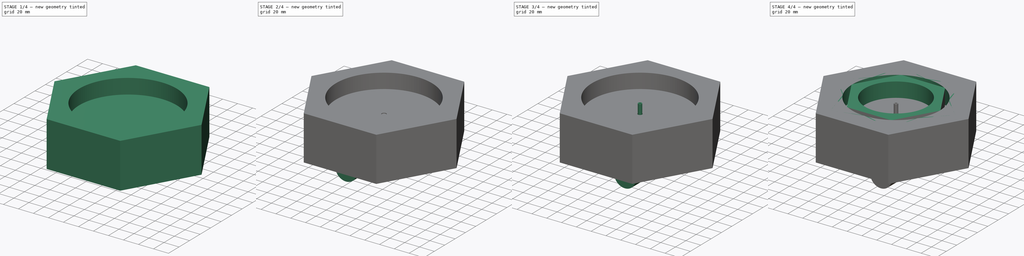
[diagram: build sequence overview — one tinted view per stage of 4, left to right]
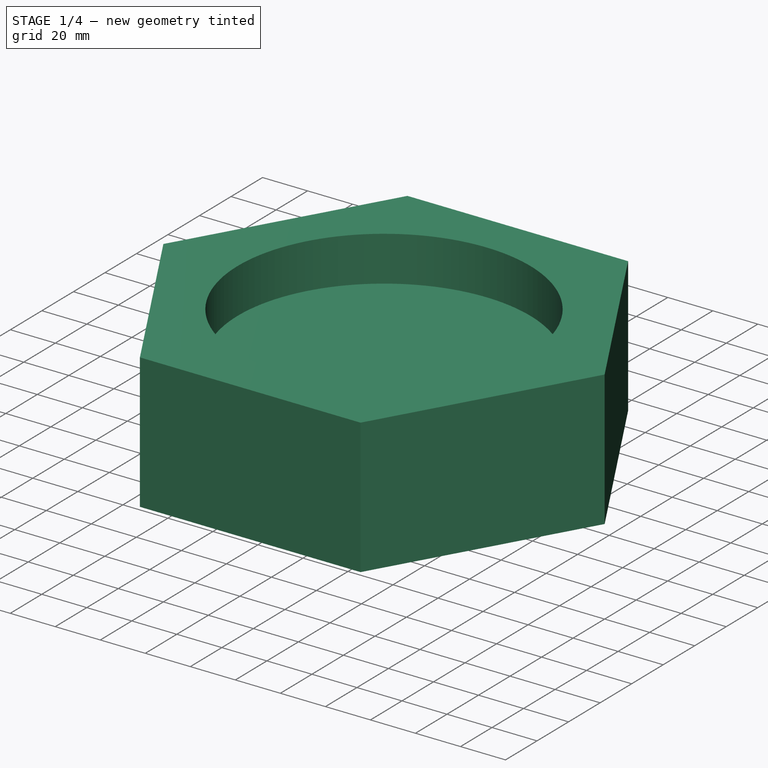
[diagram: stage 1 of 4 — iso view after this stage's code; geometry added in this stage tinted green]
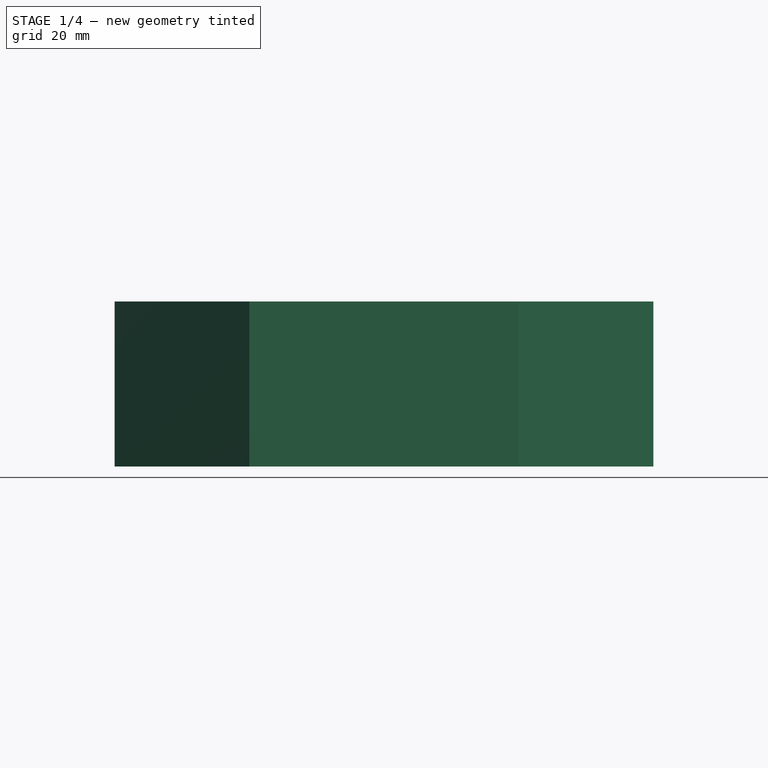
[diagram: stage 1 of 4 — front view after this stage's code; geometry added in this stage tinted green]
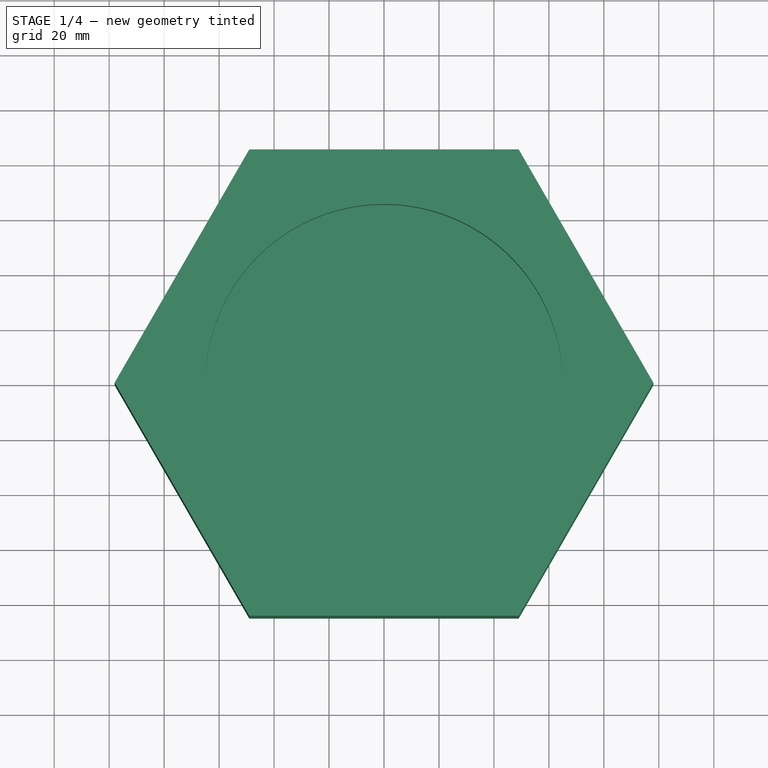
[diagram: stage 1 of 4 — top view after this stage's code; geometry added in this stage tinted green]
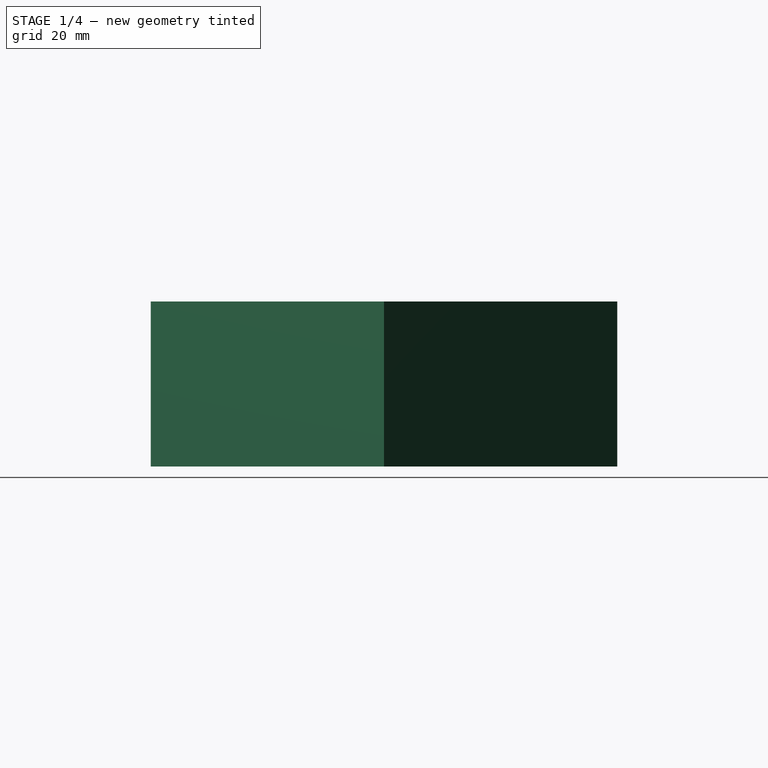
[diagram: stage 1 of 4 — right view after this stage's code; geometry added in this stage tinted green]
FCSTD DOCUMENT  (FreeCAD 0.17R13387 (Git))
Label: sketch_size_papertest
License: All rights reserved
LicenseURL: http://en.wikipedia.org/wiki/All_rights_reserved
objects: Sketcher::SketchObject×19, PartDesign::Body×9, PartDesign::Pad×8, TechDraw::DrawSVGTemplate×8, Part::Part2DObjectPython×8, TechDraw::DrawViewPart×8, TechDraw::DrawPage×8, App::Part×8, Part::FeaturePython×6, App::DocumentObjectGroup×6, PartDesign::Pocket×5, PartDesign::FeatureBase×1, PartDesign::ShapeBinder×1, PartDesign::Plane×1
note: 71 computed .brp shape members not serialized (recipe doc carries the construction recipe); baked Part::Feature solids carry a one-line shape summary decoded from their .brp

FEATURE [PartDesign::Body] Body  label="base_hexagon_120mm_Body"
  Group = -> [Sketch,Pad,Sketch001,Pocket]
  Origin = -> Origin001
  Tip = -> Pocket
FEATURE [Sketcher::SketchObject] Sketch002  label="hexagon_180mm_base_Sketch"
  MapMode = 5
  Support = -> [XY_Plane002]
  expr: Constraints[19] = 180 + 4 + 4 + 4 + 4
  sketch-geometry (7):
    g0: LineSegment StartX=49 StartY=84.8705 StartZ=0 EndX=-49 EndY=84.8705 EndZ=0
    g1: LineSegment StartX=-49 StartY=84.8705 StartZ=0 EndX=-98 EndY=2e-12 EndZ=0
    g2: LineSegment StartX=-98 StartY=2e-12 StartZ=0 EndX=-49 EndY=-84.8705 EndZ=0
    g3: LineSegment StartX=-49 StartY=-84.8705 StartZ=0 EndX=49 EndY=-84.8705 EndZ=0
    g4: LineSegment StartX=49 StartY=-84.8705 StartZ=0 EndX=98 EndY=2e-12 EndZ=0
    g5: LineSegment StartX=98 StartY=2e-12 StartZ=0 EndX=49 EndY=84.8705 EndZ=0
    g6: Circle [constr] CenterX=0 CenterY=0 CenterZ=0 NormalX=0 NormalY=0 NormalZ=1 AngleXU=0 Radius=98
  constraints (20):
    c: Coincident(g0,g1)
    c: Coincident(g1,g2)
    c: Coincident(g2,g3)
    c: Coincident(g3,g4)
    c: Coincident(g4,g5)
    c: Coincident(g5,g0)
    c: Equal(g0, g1-g5) x5
    c: PointOnObject(g0,g6)
    c: PointOnObject(g1,g6)
    c: PointOnObject(g2,g6)
    c: PointOnObject(g3,g6)
    c: PointOnObject(g4,g6)
    c: PointOnObject(g5,g6)
    c: Coincident(g6,g-1)
    c: Horizontal(g0)
    c: DistanceX(g1,g4) = 196
    c: DistanceX(g3,g3) = 98
    c: DistanceY(g3,g0) = 169.741
    c: DistanceX(g3,g4) = 49
    c: Radius(g6) = 98
FEATURE [PartDesign::Pad] Pad001
  Length = 60
  Length2 = 100
  Profile = -> Sketch002
  Type = 0
FEATURE [Sketcher::SketchObject] Sketch003
  ExternalGeometry = -> [Pad001]
  MapMode = 5
  Placement = pos=(0,0,60) rot=(0,0,1;0rad)
  Support = -> [Pad001]
  sketch-geometry (2):
    g0: Circle CenterX=0 CenterY=0 CenterZ=0 NormalX=0 NormalY=0 NormalZ=1 AngleXU=0 Radius=65
    g1: LineSegment [constr] StartX=0 StartY=84.8705 StartZ=0 EndX=0 EndY=65 EndZ=0
  constraints (6):
    c: Coincident(g0,g-1)
    c: Vertical(g1)
    c: Symmetric(g-3,g-3,g1)
    c: PointOnObject(g1,g0)
    c: DistanceY(g1,g1) = 19.8705
    c: Radius(g0) = 65
FEATURE [PartDesign::Pocket] Pocket001
  BaseFeature = -> Pad001
  Length = 20
  Length2 = 100
  Offset = -4
  Profile = -> Sketch003
  Type = 0
FEATURE [App::Part] Part004  label="battery_2s1p_26650_Part"
  Group = -> [Body004,Clone]
  License = CC BY 3.0
  LicenseURL = http://creativecommons.org/licenses/by/3.0/
  Origin = -> Origin012
  Placement = pos=(0,0,15) rot=(0,0,1;0rad)
FEATURE [Sketcher::SketchObject] Sketch014
  ExternalGeometry = -> [Pocket001]
  MapMode = 5
  Placement = pos=(0,0,0) rot=(1,0,0;3.14159rad)
  Support = -> [Pocket001]
  expr: Constraints[19] = 4 + 4
  sketch-geometry (7):
    g0: LineSegment StartX=44.3812 StartY=76.8705 StartZ=0 EndX=-44.3812 EndY=76.8705 EndZ=0
    g1: LineSegment StartX=-44.3812 StartY=76.8705 StartZ=0 EndX=-88.7624 EndY=0 EndZ=0
    g2: LineSegment StartX=-88.7624 StartY=0 StartZ=0 EndX=-44.3812 EndY=-76.8705 EndZ=0
    g3: LineSegment StartX=-44.3812 StartY=-76.8705 StartZ=0 EndX=44.3812 EndY=-76.8705 EndZ=0
    g4: LineSegment StartX=44.3812 StartY=-76.8705 StartZ=0 EndX=88.7624 EndY=0 EndZ=0
    g5: LineSegment StartX=88.7624 StartY=0 StartZ=0 EndX=44.3812 EndY=76.8705 EndZ=0
    g6: Circle [constr] CenterX=0 CenterY=0 CenterZ=0 NormalX=0 NormalY=0 NormalZ=1 AngleXU=0 Radius=88.7624
  constraints (16):
    c: Coincident(g0,g1)
    c: Coincident(g1,g2)
    c: Coincident(g2,g3)
    c: Coincident(g3,g4)
    c: Coincident(g4,g5)
    c: Coincident(g5,g0)
    c: Equal(g0, g1-g5) x5
    c: PointOnObject(g0,g6)
    c: PointOnObject(g1,g6)
    c: PointOnObject(g2,g6)
    c: PointOnObject(g3,g6)
    c: PointOnObject(g4,g6)
    c: PointOnObject(g5,g6)
    c: Coincident(g6,g-1)
    c: Horizontal(g0)
    c: DistanceY(g0,g-3) = 8
FEATURE [PartDesign::Pocket] Pocket003
  BaseFeature = -> Pocket001
  Length = 5
  Length2 = 100
  Offset = -1
  Profile = -> Sketch014
  Type = 2
FEATURE [PartDesign::Body] Body001  label="base_hexagon_180mm_Body"
  Group = -> [Sketch002,Pad001,Sketch003,Pocket001,Sketch014,Pocket003,Sketch015,Pocket004]
  Origin = -> Origin002
  Tip = -> Pocket004
FEATURE [TechDraw::DrawViewPart] View001  label="View_140mm"
  CoarseView = false
  Direction = (0,0,1)
  Focus = 100
  HardHidden = false
  IsoCount = 0
  IsoHidden = false
  IsoVisible = false
  LockPosition = false
  Perspective = false
  Rotation = 0
  ScaleType = 0
  SeamHidden = false
  SeamVisible = false
  SmoothHidden = false
  SmoothVisible = false
  Source = -> [Body001]
  X = 141.52
  Y = 111.429
FEATURE [TechDraw::DrawPage] Page  label="size_test_Page"
  KeepUpdated = true
  ProjectionType = 0
  Template = -> Template
  Views = -> [View001]
FEATURE [App::Part] Part  label="size_test"
  Group = -> [Body002,View001,Template,Page,Body003,Body]
  License = CC BY 3.0
  LicenseURL = http://creativecommons.org/licenses/by/3.0/
  Origin = -> Origin
FEATURE [App::DocumentObjectGroup] Group005  label="old_stuff"
  Group = -> [Group002,Page003,Page001,Group,Part,XY_Plane005,Group001,Page002]
FEATURE [App::Part] Part005  label="hexagon_180mm_3d_Part"
  Group = -> [Body001]
  License = CC BY 3.0
  LicenseURL = http://creativecommons.org/licenses/by/3.0/
  Origin = -> Origin013
FEATURE [Sketcher::SketchObject] Sketch016
  MapMode = 5
  Support = -> [XY_Plane018]
  expr: Constraints[32] = 3.2000000000000002 / 2
  sketch-geometry (16):
    g0: Circle CenterX=0 CenterY=0 CenterZ=0 NormalX=0 NormalY=0 NormalZ=1 AngleXU=0 Radius=10
    g1: LineSegment StartX=90 StartY=0 StartZ=0 EndX=45 EndY=77.9423 EndZ=0
    g2: LineSegment StartX=45 StartY=77.9423 StartZ=0 EndX=-45 EndY=77.9423 EndZ=0
    g3: LineSegment StartX=-45 StartY=77.9423 StartZ=0 EndX=-90 EndY=0 EndZ=0
    g4: LineSegment StartX=-90 StartY=0 StartZ=0 EndX=-45 EndY=-77.9423 EndZ=0
    g5: LineSegment StartX=-45 StartY=-77.9423 StartZ=0 EndX=45 EndY=-77.9423 EndZ=0
    g6: LineSegment StartX=45 StartY=-77.9423 StartZ=0 EndX=90 EndY=0 EndZ=0
    g7: Circle [constr] CenterX=0 CenterY=0 CenterZ=0 NormalX=0 NormalY=0 NormalZ=1 AngleXU=0 Radius=90
    g8: Circle CenterX=-21 CenterY=21 CenterZ=0 NormalX=0 NormalY=0 NormalZ=1 AngleXU=0 Radius=1.6
    g9: LineSegment [constr] StartX=-21 StartY=21 StartZ=0 EndX=21 EndY=21 EndZ=0
    g10: LineSegment [constr] StartX=21 StartY=21 StartZ=0 EndX=21 EndY=-21 EndZ=0
    g11: LineSegment [constr] StartX=21 StartY=-21 StartZ=0 EndX=-21 EndY=-21 EndZ=0
    g12: LineSegment [constr] StartX=-21 StartY=-21 StartZ=0 EndX=-21 EndY=21 EndZ=0
    g13: Circle CenterX=21 CenterY=21 CenterZ=0 NormalX=0 NormalY=0 NormalZ=1 AngleXU=0 Radius=1.6
    g14: Circle CenterX=21 CenterY=-21 CenterZ=0 NormalX=0 NormalY=0 NormalZ=1 AngleXU=0 Radius=1.6
    g15: Circle CenterX=-21 CenterY=-21 CenterZ=0 NormalX=0 NormalY=0 NormalZ=1 AngleXU=0 Radius=1.6
  constraints (37):
    c: Coincident(g0,g-1)
    c: Coincident(g1,g2)
    c: Coincident(g2,g3)
    c: Coincident(g3,g4)
    c: Coincident(g4,g5)
    c: Coincident(g5,g6)
    c: Coincident(g6,g1)
    c: Equal(g1, g2-g6) x5
    c: PointOnObject(g1,g7)
    c: PointOnObject(g2,g7)
    c: PointOnObject(g3,g7)
    c: PointOnObject(g4,g7)
    c: PointOnObject(g5,g7)
    c: PointOnObject(g6,g7)
    c: Coincident(g7,g-1)
    c: Horizontal(g2)
    c: DistanceX(g3,g1) = 180
    c: Radius(g0) = 10
    c: Coincident(g9,g10)
    c: Coincident(g10,g11)
    c: Coincident(g11,g12)
    c: Coincident(g12,g9)
    c: Horizontal(g9)
    c: Horizontal(g11)
    c: Vertical(g10)
    c: Vertical(g12)
    c: Symmetric(g9,g11,g-1)
    c: Coincident(g8,g9)
    c: Radius(g8) = 1.6
    c: Equal(g9,g10)
    c: Coincident(g13,g9)
    c: Coincident(g14,g10)
    c: Coincident(g15,g11)
    c: Equal(g15,g14)
    c: Equal(g14,g13)
    c: Equal(g13,g8)
    c: DistanceY(g10,g10) = 42
FEATURE [PartDesign::Pad] Pad007
  Length = 4
  Length2 = 100
  Profile = -> Sketch016
  Type = 0
FEATURE [PartDesign::Body] Body007  label="test_motor_mount_Body"
  Group = -> [Sketch016,Pad007]
  Origin = -> Origin015
  Tip = -> Pad007
FEATURE [TechDraw::DrawSVGTemplate] Template006
  Height = 210
  Orientation = 1
  Width = 297
FEATURE [TechDraw::DrawViewPart] View006
  CoarseView = false
  Direction = (0,0,1)
  Focus = 100
  HardHidden = false
  IsoCount = 0
  IsoHidden = false
  IsoVisible = false
  LockPosition = false
  Perspective = false
  Rotation = 0
  ScaleType = 0
  SeamHidden = false
  SeamVisible = false
  SmoothHidden = false
  SmoothVisible = false
  Source = -> [Body007]
  X = 102.888
  Y = 120.612
FEATURE [TechDraw::DrawPage] Page006  label="test_motor_mount_A4_CAM_Page"
  KeepUpdated = true
  ProjectionType = 0
  Template = -> Template006
  Views = -> [View006]
FEATURE [App::Part] Part006  label="test_motor_mount_Part"
  Group = -> [Body007,Template006,View006,Page006]
  License = CC BY 3.0
  LicenseURL = http://creativecommons.org/licenses/by/3.0/
  Origin = -> Origin014
FEATURE [PartDesign::Body] Body008  label="windrose_Body"
  Origin = -> Origin017
FEATURE [PartDesign::ShapeBinder] CopyPocket004
FEATURE [PartDesign::Plane] DatumPlane
  AttachmentOffset = pos=(0,0,1) rot=(0,0,1;0rad)
  MapMode = 5
  Placement = pos=(0,0,41) rot=(0,0,1;0rad)
  Support = -> [CopyPocket004]
FEATURE [Sketcher::SketchObject] Sketch017  label="windrose_top"
  MapMode = 5
  Placement = pos=(0,0,41) rot=(0,0,1;0rad)
  Support = -> [DatumPlane]
  sketch-geometry (6):
    g0: LineSegment StartX=0 StartY=0 StartZ=0 EndX=-16.1658 EndY=28 EndZ=0
    g1: LineSegment StartX=-16.1658 StartY=28 StartZ=0 EndX=0 EndY=65 EndZ=0
    g2: LineSegment StartX=0 StartY=65 StartZ=0 EndX=16.1658 EndY=28 EndZ=0
    g3: LineSegment StartX=16.1658 StartY=28 StartZ=0 EndX=0 EndY=0 EndZ=0
    g4: LineSegment StartX=0 StartY=65 StartZ=0 EndX=0 EndY=0 EndZ=0
    g5: LineSegment [constr] StartX=-16.1658 StartY=28 StartZ=0 EndX=16.1658 EndY=28 EndZ=0
  constraints (15):
    c: Coincident(g-1,g0)
    c: Coincident(g0,g1)
    c: Coincident(g1,g2)
    c: Coincident(g2,g3)
    c: Coincident(g3,g0)
    c: Coincident(g4,g1)
    c: Coincident(g4,g-1)
    c: Vertical(g4)
    c: DistanceY(g4,g4) = 65
    c: Angle(g3,g4) = 0.523599
    c: Angle(g4,g0) = 0.523599
    c: DistanceY(g-1,g2) = 28
    c: Coincident(g5,g0)
    c: Coincident(g5,g2)
    c: Horizontal(g5)
FEATURE [Sketcher::SketchObject] Sketch018  label="windrose_bottom"
  AttachmentOffset = pos=(0,0,0) rot=(0,0,1;0.785398rad)
  MapMode = 5
  Placement = pos=(0,0,41) rot=(0,0,1;0.785398rad)
  Support = -> [DatumPlane]
  sketch-geometry (6):
    g0: LineSegment StartX=0 StartY=0 StartZ=0 EndX=-10.3553 EndY=25 EndZ=0
    g1: LineSegment StartX=-10.3553 StartY=25 StartZ=0 EndX=0 EndY=65 EndZ=0
    g2: LineSegment StartX=0 StartY=65 StartZ=0 EndX=10.3553 EndY=25 EndZ=0
    g3: LineSegment StartX=10.3553 StartY=25 StartZ=0 EndX=0 EndY=0 EndZ=0
    g4: LineSegment StartX=0 StartY=65 StartZ=0 EndX=0 EndY=0 EndZ=0
    g5: LineSegment [constr] StartX=-10.3553 StartY=25 StartZ=0 EndX=10.3553 EndY=25 EndZ=0
  constraints (15):
    c: Coincident(g-1,g0)
    c: Coincident(g0,g1)
    c: Coincident(g1,g2)
    c: Coincident(g2,g3)
    c: Coincident(g3,g0)
    c: Coincident(g4,g1)
    c: Coincident(g4,g-1)
    c: Vertical(g4)
    c: DistanceY(g4,g4) = 65
    c: Angle(g3,g4) = 0.392699
    c: Angle(g4,g0) = 0.392699
    c: DistanceY(g-1,g2) = 25
    c: Coincident(g5,g0)
    c: Coincident(g5,g2)
    c: Horizontal(g5)
FEATURE [Part::FeaturePython] Array004  # Draft array (typed FeaturePython)
  Angle = 360
  ArrayType = 1
  Axis = (0,0,1)
  Base = -> Sketch017
  Center = (0,0,0)
  Fuse = false
  IntervalAxis = (0,0,0)
  IntervalX = (1,0,0)
  IntervalY = (0,1,0)
  IntervalZ = (0,0,0)
  NumberPolar = 4
  NumberX = 2
  NumberY = 2
  NumberZ = 1
FEATURE [Part::FeaturePython] Array005  # Draft array (typed FeaturePython)
  Angle = 360
  ArrayType = 1
  Axis = (0,0,1)
  Base = -> Sketch018
  Center = (0,0,0)
  Fuse = false
  IntervalAxis = (0,0,0)
  IntervalX = (1,0,0)
  IntervalY = (0,1,0)
  IntervalZ = (0,0,0)
  NumberPolar = 4
  NumberX = 2
  NumberY = 2
  NumberZ = 1
FEATURE [TechDraw::DrawSVGTemplate] Template007
  Height = 210
  Orientation = 1
  Width = 297
FEATURE [TechDraw::DrawViewPart] View007
  CoarseView = false
  Direction = (0,0,1)
  Focus = 100
  HardHidden = false
  IsoCount = 0
  IsoHidden = false
  IsoVisible = false
  LockPosition = false
  Perspective = false
  Rotation = 0
  ScaleType = 0
  SeamHidden = false
  SeamVisible = false
  SmoothHidden = false
  SmoothVisible = false
  Source = -> [Array004,Array005]
  X = 148.5
  Y = 105
FEATURE [TechDraw::DrawPage] Page007  label="windrose_A4_CAM_Page"
  KeepUpdated = true
  ProjectionType = 0
  Template = -> Template007
  Views = -> [View007]
FEATURE [App::Part] Part007  label="windrose_Part"
  Group = -> [Body008,CopyPocket004,Array005,Sketch017,Sketch018,DatumPlane,Array004,Template007,View007,Page007]
  License = CC BY 3.0
  LicenseURL = http://creativecommons.org/licenses/by/3.0/
  Origin = -> Origin016
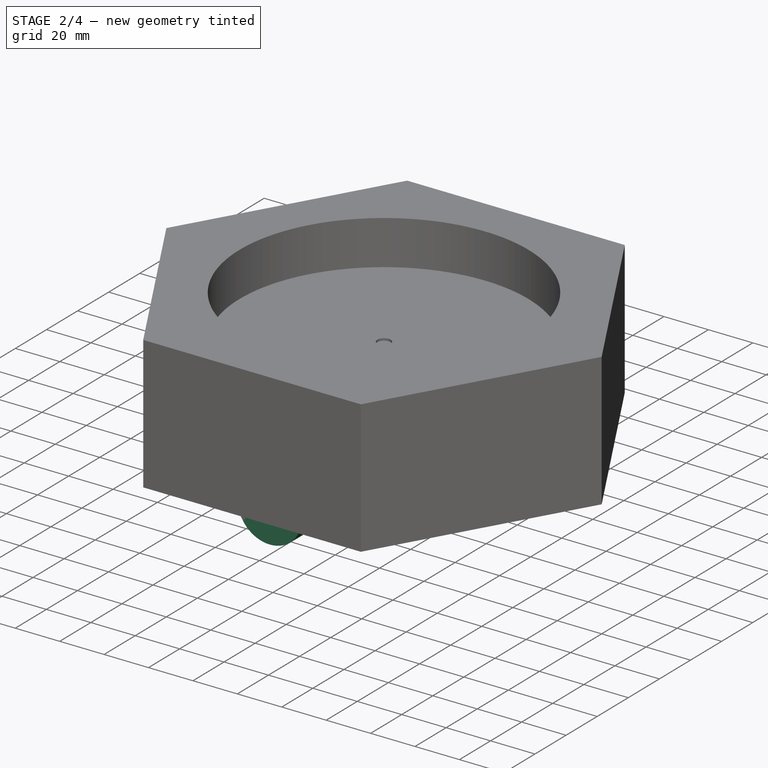
[diagram: stage 2 of 4 — iso view after this stage's code; geometry added in this stage tinted green]
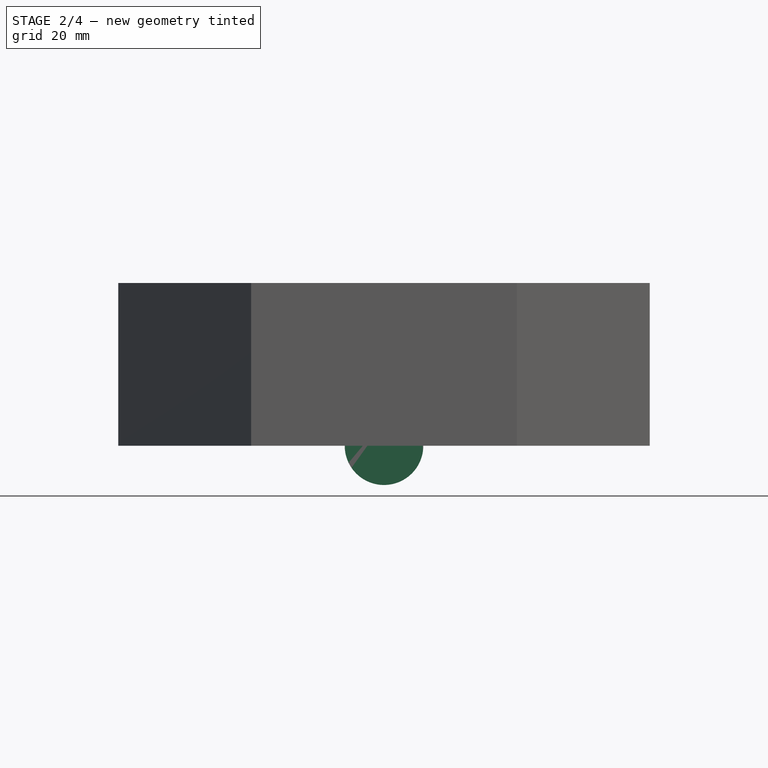
[diagram: stage 2 of 4 — front view after this stage's code; geometry added in this stage tinted green]
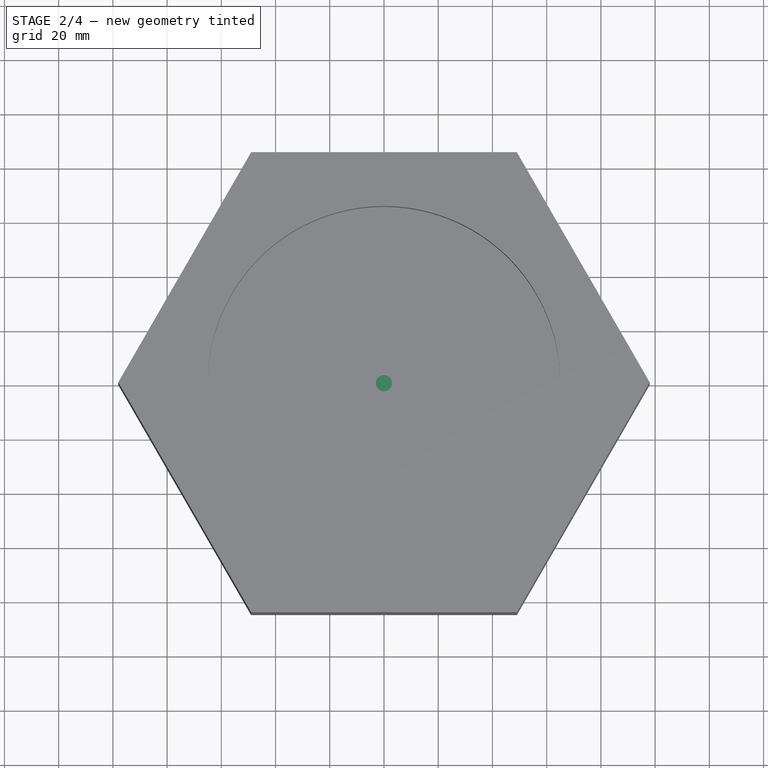
[diagram: stage 2 of 4 — top view after this stage's code; geometry added in this stage tinted green]
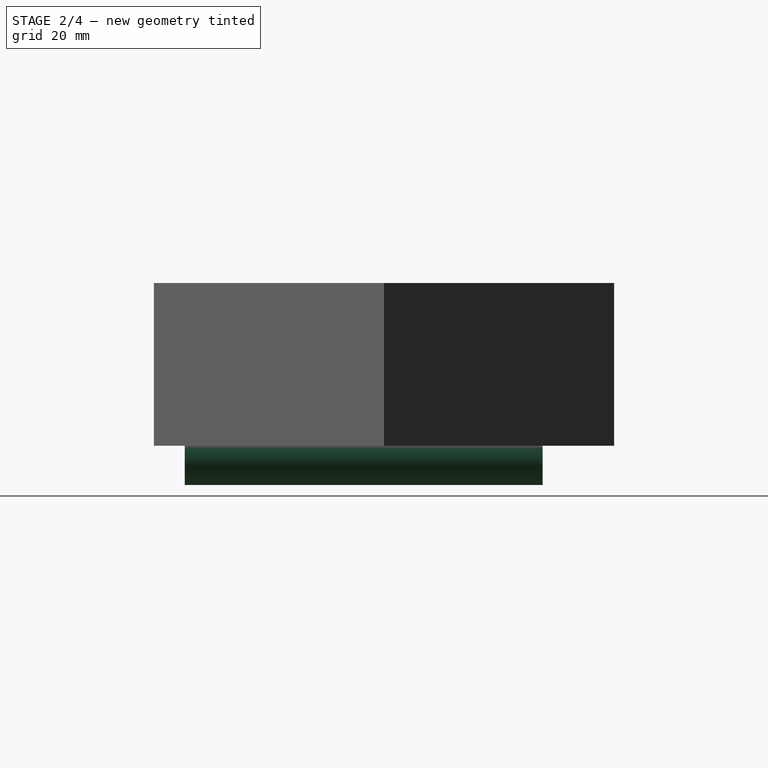
[diagram: stage 2 of 4 — right view after this stage's code; geometry added in this stage tinted green]
FEATURE [PartDesign::Body] Body002  label="base_hexagon_160mm_Body"
  Group = -> [Sketch004,Pad002,Sketch005,Pocket002]
  Origin = -> Origin003
  Tip = -> Pocket002
FEATURE [TechDraw::DrawSVGTemplate] Template
  Height = 210
  Orientation = 1
  Width = 297
FEATURE [Sketcher::SketchObject] Sketch006  label="paper_hexagon_140mm_Sketch"
  MapMode = 5
  Support = -> [XY_Plane004]
  sketch-geometry (13):
    g0: LineSegment StartX=35 StartY=60.6218 StartZ=0 EndX=-35 EndY=60.6218 EndZ=0
    g1: LineSegment StartX=-35 StartY=60.6218 StartZ=0 EndX=-70 EndY=0 EndZ=0
    g2: LineSegment StartX=-70 StartY=0 StartZ=0 EndX=-35 EndY=-60.6218 EndZ=0
    g3: LineSegment StartX=-35 StartY=-60.6218 StartZ=0 EndX=35 EndY=-60.6218 EndZ=0
    g4: LineSegment StartX=35 StartY=-60.6218 StartZ=0 EndX=70 EndY=0 EndZ=0
    g5: LineSegment StartX=70 StartY=0 StartZ=0 EndX=35 EndY=60.6218 EndZ=0
    g6: Circle [constr] CenterX=0 CenterY=0 CenterZ=0 NormalX=0 NormalY=0 NormalZ=1 AngleXU=0 Radius=70
    g7: LineSegment [constr] StartX=0 StartY=70 StartZ=0 EndX=0 EndY=60.6218 EndZ=0
    g8: LineSegment StartX=-35 StartY=60.6218 StartZ=0 EndX=-35 EndY=120.622 EndZ=0
    g9: LineSegment StartX=-35 StartY=120.622 StartZ=0 EndX=35 EndY=120.622 EndZ=0
    g10: LineSegment StartX=35 StartY=120.622 StartZ=0 EndX=35 EndY=60.6218 EndZ=0
    g11: LineSegment StartX=-35 StartY=90.6218 StartZ=0 EndX=35 EndY=90.6218 EndZ=0
    g12: LineSegment StartX=-35 StartY=110.622 StartZ=0 EndX=35 EndY=110.622 EndZ=0
  constraints (40):
    c: Coincident(g0,g1)
    c: Coincident(g1,g2)
    c: Coincident(g2,g3)
    c: Coincident(g3,g4)
    c: Coincident(g4,g5)
    c: Coincident(g5,g0)
    c: Equal(g0, g1-g5) x5
    c: PointOnObject(g0,g6)
    c: PointOnObject(g1,g6)
    c: PointOnObject(g2,g6)
    c: PointOnObject(g3,g6)
    c: PointOnObject(g4,g6)
    c: PointOnObject(g5,g6)
    c: Coincident(g6,g-1)
    c: Horizontal(g0)
    c: DistanceX(g1,g4) = 140
    c: DistanceX(g3,g3) = 70
    c: DistanceY(g3,g0) = 121.244
    c: DistanceX(g3,g4) = 35
    c: Radius(g6) = 70
    c: Vertical(g7)
    c: Perpendicular(g7,g6) = 4.71239
    c: PointOnObject(g7,g0)
    c: DistanceY(g7,g7) = 9.37822
    c: Coincident(g8,g9)
    c: Coincident(g9,g10)
    c: Perpendicular(g9,g8)
    c: Perpendicular(g9,g10)
    c: Coincident(g0,g8)
    c: Coincident(g0,g10)
    c: Parallel(g9,g0)
    c: DistanceY(g8,g8) = 60
    c: Horizontal(g11)
    c: PointOnObject(g11,g8)
    c: PointOnObject(g11,g10)
    c: DistanceY(g11,g8) = 30
    c: Horizontal(g12)
    c: DistanceY(g0,g12) = 50
    c: PointOnObject(g12,g10)
    c: PointOnObject(g12,g8)
FEATURE [PartDesign::Body] Body003  label="paper_test_hexagon_140mm_Body"
  Group = -> [Sketch006]
  Origin = -> Origin004
FEATURE [TechDraw::DrawSVGTemplate] Template001
  Height = 210
  Orientation = 1
  Width = 297
FEATURE [Part::FeaturePython] Array  # Draft array (typed FeaturePython)
  Angle = 360
  ArrayType = 1
  Axis = (0,0,1)
  Base = -> Sketch006
  Center = (0,0,0)
  Fuse = false
  IntervalAxis = (0,0,0)
  IntervalX = (1,0,0)
  IntervalY = (0,1,0)
  IntervalZ = (0,0,0)
  NumberPolar = 6
  NumberX = 2
  NumberY = 2
  NumberZ = 1
FEATURE [Part::Part2DObjectPython] Circle  # Draft 2D object (typed FeaturePython)
  FirstAngle = 0
  LastAngle = 0
  MakeFace = false
  Radius = 50
FEATURE [App::DocumentObjectGroup] Group  label="hexagon_140mm"
  Group = -> [Circle,Array]
FEATURE [TechDraw::DrawViewPart] View002
  CoarseView = false
  Direction = (0,0,1)
  Focus = 100
  HardHidden = false
  IsoCount = 0
  IsoHidden = false
  IsoVisible = false
  LockPosition = false
  Perspective = false
  Rotation = 0
  ScaleType = 0
  SeamHidden = false
  SeamVisible = false
  SmoothHidden = false
  SmoothVisible = false
  Source = -> [Group]
  X = 148.835
  Y = 104.665
FEATURE [TechDraw::DrawPage] Page001  label="paper_test_hexagon_140mm_Page"
  KeepUpdated = true
  ProjectionType = 0
  Template = -> Template001
  Views = -> [View002]
FEATURE [Part::Part2DObjectPython] Rectangle  label="AkkuCell_26650_bottom"  # Draft 2D object (typed FeaturePython)
  ChamferSize = 0
  Columns = 1
  FilletRadius = 0
  Height = 65
  Length = 28
  MakeFace = false
  Placement = pos=(33,-64,0) rot=(0,0,1;1.5708rad)
  Rows = 1
FEATURE [Part::Part2DObjectPython] Rectangle001  label="AkkuCell_26650_top"  # Draft 2D object (typed FeaturePython)
  ChamferSize = 0
  Columns = 1
  FilletRadius = 0
  Height = 65
  Length = 28
  MakeFace = false
  Placement = pos=(33,36,0) rot=(0,0,1;1.5708rad)
  Rows = 1
FEATURE [Part::Part2DObjectPython] Rectangle002  label="AkkuCell_26650_right"  # Draft 2D object (typed FeaturePython)
  ChamferSize = 0
  Columns = 1
  FilletRadius = 0
  Height = 65
  Length = 28
  MakeFace = false
  Placement = pos=(26,-32,0) rot=(0,0,1;0rad)
  Rows = 1
FEATURE [Sketcher::SketchObject] Sketch007  label="paper_hexagon_160mm_Sketch"
  MapMode = 5
  Support = -> [XY_Plane005]
  sketch-geometry (15):
    g0: LineSegment StartX=40 StartY=69.282 StartZ=0 EndX=-40 EndY=69.282 EndZ=0
    g1: LineSegment StartX=-40 StartY=69.282 StartZ=0 EndX=-80 EndY=0 EndZ=0
    g2: LineSegment StartX=-80 StartY=0 StartZ=0 EndX=-40 EndY=-69.282 EndZ=0
    g3: LineSegment StartX=-40 StartY=-69.282 StartZ=0 EndX=40 EndY=-69.282 EndZ=0
    g4: LineSegment StartX=40 StartY=-69.282 StartZ=0 EndX=80 EndY=0 EndZ=0
    g5: LineSegment StartX=80 StartY=0 StartZ=0 EndX=40 EndY=69.282 EndZ=0
    g6: Circle [constr] CenterX=0 CenterY=0 CenterZ=0 NormalX=0 NormalY=0 NormalZ=1 AngleXU=0 Radius=80
    g7: LineSegment [constr] StartX=-2.5e-11 StartY=80 StartZ=0 EndX=-2.5e-11 EndY=69.282 EndZ=0
    g8: LineSegment StartX=-40 StartY=69.282 StartZ=0 EndX=-40 EndY=129.282 EndZ=0
    g9: LineSegment StartX=-40 StartY=129.282 StartZ=0 EndX=40 EndY=129.282 EndZ=0
    g10: LineSegment StartX=40 StartY=129.282 StartZ=0 EndX=40 EndY=69.282 EndZ=0
    g11: LineSegment StartX=-40 StartY=99.282 StartZ=0 EndX=40 EndY=99.282 EndZ=0
    g12: Circle [constr] CenterX=0 CenterY=0 CenterZ=0 NormalX=0 NormalY=0 NormalZ=1 AngleXU=0 Radius=60
    g13: LineSegment [constr] StartX=-60 StartY=34.641 StartZ=0 EndX=-51.9615 EndY=30 EndZ=0
    g14: LineSegment StartX=-40 StartY=119.282 StartZ=0 EndX=40 EndY=119.282 EndZ=0
  constraints (46):
    c: Coincident(g0,g1)
    c: Coincident(g1,g2)
    c: Coincident(g2,g3)
    c: Coincident(g3,g4)
    c: Coincident(g4,g5)
    c: Coincident(g5,g0)
    c: Equal(g0, g1-g5) x5
    c: PointOnObject(g0,g6)
    c: PointOnObject(g1,g6)
    c: PointOnObject(g2,g6)
    c: PointOnObject(g3,g6)
    c: PointOnObject(g4,g6)
    c: PointOnObject(g5,g6)
    c: Coincident(g6,g-1)
    c: Horizontal(g0)
    c: DistanceX(g1,g4) = 160
    c: DistanceX(g3,g3) = 80
    c: DistanceY(g3,g0) = 138.564
    c: DistanceX(g3,g4) = 40
    c: Radius(g6) = 80
    c: Vertical(g7)
    c: Perpendicular(g7,g6) = 4.71239
    c: PointOnObject(g7,g0)
    c: DistanceY(g7,g7) = 10.718
    c: Coincident(g8,g9)
    c: Coincident(g9,g10)
    c: Perpendicular(g9,g8)
    c: Perpendicular(g9,g10)
    c: Coincident(g0,g8)
    c: Coincident(g0,g10)
    c: Parallel(g9,g0)
    c: DistanceY(g8,g8) = 60
    c: Horizontal(g11)
    c: PointOnObject(g11,g8)
    c: PointOnObject(g11,g10)
    c: DistanceY(g11,g8) = 30
    c: Coincident(g12,g-1)
    c: Radius(g12) = 60
    c: Perpendicular(g1,g13)
    c: Symmetric(g1,g1,g13)
    c: Perpendicular(g13,g12) = 4.71239
    c: Distance(g13) = 9.28203
    c: PointOnObject(g14,g10)
    c: Horizontal(g14)
    c: PointOnObject(g14,g8)
    c: DistanceY(g0,g14) = 50
FEATURE [Part::Part2DObjectPython] Circle001  # Draft 2D object (typed FeaturePython)
  FirstAngle = 0
  LastAngle = 0
  MakeFace = false
  Radius = 60
FEATURE [Part::FeaturePython] Array001  # Draft array (typed FeaturePython)
  Angle = 360
  ArrayType = 1
  Axis = (0,0,1)
  Base = -> Sketch007
  Center = (0,0,0)
  Fuse = false
  IntervalAxis = (0,0,0)
  IntervalX = (1,0,0)
  IntervalY = (0,1,0)
  IntervalZ = (0,0,0)
  NumberPolar = 6
  NumberX = 2
  NumberY = 2
  NumberZ = 1
FEATURE [App::DocumentObjectGroup] Group001  label="hexagon_160mm"
  Group = -> [Circle001,Array001,XY_Plane007]
FEATURE [TechDraw::DrawSVGTemplate] Template002
  Height = 210
  Orientation = 1
  Width = 297
FEATURE [TechDraw::DrawViewPart] View
  CoarseView = false
  Direction = (0,0,1)
  Focus = 100
  HardHidden = false
  IsoCount = 0
  IsoHidden = false
  IsoVisible = false
  LockPosition = false
  Perspective = false
  Rotation = 0
  ScaleType = 0
  SeamHidden = false
  SeamVisible = false
  SmoothHidden = false
  SmoothVisible = false
  Source = -> [Group001]
  X = 148.5
  Y = 105
FEATURE [TechDraw::DrawPage] Page002  label="paper_test_hexagon_160mm_Page"
  KeepUpdated = true
  ProjectionType = 0
  Template = -> Template002
  Views = -> [View]
FEATURE [Part::Part2DObjectPython] Circle002  # Draft 2D object (typed FeaturePython)
  FirstAngle = 0
  LastAngle = 0
  MakeFace = false
  Radius = 40
FEATURE [Sketcher::SketchObject] Sketch008  label="paper_hexagon_120mm_Sketch"
  MapMode = 5
  Support = -> [XY_Plane006]
  sketch-geometry (15):
    g0: LineSegment StartX=30 StartY=51.9615 StartZ=0 EndX=-30 EndY=51.9615 EndZ=0
    g1: LineSegment StartX=-30 StartY=51.9615 StartZ=0 EndX=-60 EndY=0 EndZ=0
    g2: LineSegment StartX=-60 StartY=0 StartZ=0 EndX=-30 EndY=-51.9615 EndZ=0
    g3: LineSegment StartX=-30 StartY=-51.9615 StartZ=0 EndX=30 EndY=-51.9615 EndZ=0
    g4: LineSegment StartX=30 StartY=-51.9615 StartZ=0 EndX=60 EndY=0 EndZ=0
    g5: LineSegment StartX=60 StartY=0 StartZ=0 EndX=30 EndY=51.9615 EndZ=0
    g6: Circle [constr] CenterX=0 CenterY=0 CenterZ=0 NormalX=0 NormalY=0 NormalZ=1 AngleXU=0 Radius=60
    g7: LineSegment [constr] StartX=-1.9e-11 StartY=60 StartZ=0 EndX=-1.9e-11 EndY=51.9615 EndZ=0
    g8: LineSegment StartX=-30 StartY=51.9615 StartZ=0 EndX=-30 EndY=111.962 EndZ=0
    g9: LineSegment StartX=-30 StartY=111.962 StartZ=0 EndX=30 EndY=111.962 EndZ=0
    g10: LineSegment StartX=30 StartY=111.962 StartZ=0 EndX=30 EndY=51.9615 EndZ=0
    g11: LineSegment StartX=-30 StartY=81.9615 StartZ=0 EndX=30 EndY=81.9615 EndZ=0
    g12: Circle [constr] CenterX=0 CenterY=0 CenterZ=0 NormalX=0 NormalY=0 NormalZ=1 AngleXU=0 Radius=40
    g13: LineSegment [constr] StartX=-45 StartY=25.9808 StartZ=0 EndX=-34.641 EndY=20 EndZ=0
    g14: LineSegment StartX=-30 StartY=101.962 StartZ=0 EndX=30 EndY=101.962 EndZ=0
  constraints (45):
    c: Coincident(g0,g1)
    c: Coincident(g1,g2)
    c: Coincident(g2,g3)
    c: Coincident(g3,g4)
    c: Coincident(g4,g5)
    c: Coincident(g5,g0)
    c: Equal(g0, g1-g5) x5
    c: PointOnObject(g0,g6)
    c: PointOnObject(g1,g6)
    c: PointOnObject(g2,g6)
    c: PointOnObject(g3,g6)
    c: PointOnObject(g4,g6)
    c: PointOnObject(g5,g6)
    c: Coincident(g6,g-1)
    c: Horizontal(g0)
    c: DistanceX(g1,g4) = 120
    c: DistanceX(g3,g3) = 60
    c: DistanceY(g3,g0) = 103.923
    c: DistanceX(g3,g4) = 30
    c: Vertical(g7)
    c: Perpendicular(g7,g6) = 4.71239
    c: PointOnObject(g7,g0)
    c: DistanceY(g7,g7) = 8.03848
    c: Coincident(g8,g9)
    c: Coincident(g9,g10)
    c: Perpendicular(g9,g8)
    c: Perpendicular(g9,g10)
    c: Coincident(g0,g8)
    c: Coincident(g0,g10)
    c: Parallel(g9,g0)
    c: DistanceY(g8,g8) = 60
    c: Horizontal(g11)
    c: PointOnObject(g11,g8)
    c: PointOnObject(g11,g10)
    c: DistanceY(g11,g8) = 30
    c: Coincident(g12,g-1)
    c: Radius(g12) = 40
    c: Perpendicular(g1,g13)
    c: Symmetric(g1,g1,g13)
    c: Perpendicular(g13,g12) = 4.71239
    c: Distance(g13) = 11.9615
    c: PointOnObject(g14,g8)
    c: PointOnObject(g14,g10)
    c: Horizontal(g14)
    c: DistanceY(g0,g14) = 50
FEATURE [Part::FeaturePython] Array002  # Draft array (typed FeaturePython)
  Angle = 360
  ArrayType = 1
  Axis = (0,0,1)
  Base = -> Sketch008
  Center = (0,0,0)
  Fuse = false
  IntervalAxis = (0,0,0)
  IntervalX = (1,0,0)
  IntervalY = (0,1,0)
  IntervalZ = (0,0,0)
  NumberPolar = 6
  NumberX = 2
  NumberY = 2
  NumberZ = 1
FEATURE [App::DocumentObjectGroup] Group002  label="hexagon_120mm"
  Group = -> [Circle002,Array002,XY_Plane006]
FEATURE [TechDraw::DrawSVGTemplate] Template003
  Height = 210
  Orientation = 1
  Width = 297
FEATURE [TechDraw::DrawViewPart] View003
  CoarseView = false
  Direction = (0,0,1)
  Focus = 100
  HardHidden = false
  IsoCount = 0
  IsoHidden = false
  IsoVisible = false
  LockPosition = false
  Perspective = false
  Rotation = 0
  ScaleType = 0
  SeamHidden = false
  SeamVisible = false
  SmoothHidden = false
  SmoothVisible = false
  Source = -> [Group002]
  X = 148.5
  Y = 105
FEATURE [TechDraw::DrawPage] Page003  label="paper_test_hexagon_120mm_Page"
  KeepUpdated = true
  ProjectionType = 0
  Template = -> Template003
  Views = -> [View003]
FEATURE [Sketcher::SketchObject] Sketch009  label="paper_hexagon_180mm_Sketch"
  MapMode = 5
  Support = -> [XY_Plane007]
  sketch-geometry (21):
    g0: LineSegment StartX=45 StartY=77.9423 StartZ=0 EndX=-45 EndY=77.9423 EndZ=0
    g1: LineSegment StartX=-45 StartY=77.9423 StartZ=0 EndX=-90 EndY=0 EndZ=0
    g2: LineSegment StartX=-90 StartY=0 StartZ=0 EndX=-45 EndY=-77.9423 EndZ=0
    g3: LineSegment StartX=-45 StartY=-77.9423 StartZ=0 EndX=45 EndY=-77.9423 EndZ=0
    g4: LineSegment StartX=45 StartY=-77.9423 StartZ=0 EndX=90 EndY=0 EndZ=0
    g5: LineSegment StartX=90 StartY=0 StartZ=0 EndX=45 EndY=77.9423 EndZ=0
    g6: Circle [constr] CenterX=0 CenterY=0 CenterZ=0 NormalX=0 NormalY=0 NormalZ=1 AngleXU=0 Radius=90
    g7: LineSegment [constr] StartX=-2.8e-11 StartY=90 StartZ=0 EndX=-2.8e-11 EndY=77.9423 EndZ=0
    g8: LineSegment StartX=-45 StartY=77.9423 StartZ=0 EndX=-45 EndY=137.942 EndZ=0
    g9: LineSegment StartX=-45 StartY=137.942 StartZ=0 EndX=45 EndY=137.942 EndZ=0
    g10: LineSegment StartX=45 StartY=137.942 StartZ=0 EndX=45 EndY=77.9423 EndZ=0
    g11: LineSegment StartX=-45 StartY=117.942 StartZ=0 EndX=45 EndY=117.942 EndZ=0
    g12: Circle [constr] CenterX=0 CenterY=0 CenterZ=0 NormalX=0 NormalY=0 NormalZ=1 AngleXU=0 Radius=65
    g13: LineSegment [constr] StartX=-67.5 StartY=38.9711 StartZ=0 EndX=-56.2917 EndY=32.5 EndZ=0
    g14: LineSegment StartX=-45 StartY=97.9423 StartZ=0 EndX=45 EndY=97.9423 EndZ=0
    g15: LineSegment StartX=45 StartY=77.9423 StartZ=0 EndX=55 EndY=95.2628 EndZ=0
    g16: LineSegment StartX=55 StartY=95.2628 StartZ=0 EndX=55 EndY=120.622 EndZ=0
    g17: LineSegment StartX=55 StartY=120.622 StartZ=0 EndX=45 EndY=137.942 EndZ=0
    g18: LineSegment StartX=-45 StartY=137.942 StartZ=0 EndX=-27.6795 EndY=147.942 EndZ=0
    g19: LineSegment StartX=-27.6795 StartY=147.942 StartZ=0 EndX=27.6795 EndY=147.942 EndZ=0
    g20: LineSegment StartX=27.6795 StartY=147.942 StartZ=0 EndX=45 EndY=137.942 EndZ=0
  constraints (62):
    c: Coincident(g0,g1)
    c: Coincident(g1,g2)
    c: Coincident(g2,g3)
    c: Coincident(g3,g4)
    c: Coincident(g4,g5)
    c: Coincident(g5,g0)
    c: Equal(g0, g1-g5) x5
    c: PointOnObject(g0,g6)
    c: PointOnObject(g1,g6)
    c: PointOnObject(g2,g6)
    c: PointOnObject(g3,g6)
    c: PointOnObject(g4,g6)
    c: PointOnObject(g5,g6)
    c: Coincident(g6,g-1)
    c: Horizontal(g0)
    c: DistanceX(g1,g4) = 180
    c: DistanceX(g3,g3) = 90
    c: DistanceY(g3,g0) = 155.885
    c: DistanceX(g3,g4) = 45
    c: Radius(g6) = 90
    c: Vertical(g7)
    c: Perpendicular(g7,g6) = 4.71239
    c: PointOnObject(g7,g0)
    c: DistanceY(g7,g7) = 12.0577
    c: Coincident(g8,g9)
    c: Coincident(g9,g10)
    c: Perpendicular(g9,g8)
    c: Perpendicular(g9,g10)
    c: Coincident(g0,g8)
    c: Coincident(g0,g10)
    c: Parallel(g9,g0)
    c: DistanceY(g8,g8) = 60
    c: Horizontal(g11)
    c: PointOnObject(g11,g8)
    c: PointOnObject(g11,g10)
    c: Coincident(g12,g-1)
    c: Radius(g12) = 65
    c: Perpendicular(g1,g13)
    c: Symmetric(g1,g1,g13)
    c: Perpendicular(g13,g12) = 4.71239
    c: Distance(g13) = 12.9423
    c: PointOnObject(g14,g10)
    c: Horizontal(g14)
    c: PointOnObject(g14,g8)
    c: DistanceY(g0,g14) = 20
    c: DistanceY(g0,g11) = 40
    c: Coincident(g15,g16)
    c: Vertical(g16)
    c: Coincident(g16,g17)
    c: Coincident(g9,g17)
    c: Angle(g15,g10) = 0.523599
    c: Coincident(g0,g15)
    c: DistanceX(g9,g16) = 10
    c: Angle(g10,g17) = 0.523599
    c: Coincident(g18,g19)
    c: Horizontal(g19)
    c: Coincident(g19,g20)
    c: Coincident(g20,g9)
    c: Angle(g9,g18) = 0.523599
    c: Coincident(g8,g18)
    c: DistanceY(g8,g18) = 10
    c: Angle(g20,g9) = 0.523599
FEATURE [Part::FeaturePython] Array003  # Draft array (typed FeaturePython)
  Angle = 360
  ArrayType = 1
  Axis = (0,0,1)
  Base = -> Sketch009
  Center = (0,0,0)
  Fuse = false
  IntervalAxis = (0,0,0)
  IntervalX = (1,0,0)
  IntervalY = (0,1,0)
  IntervalZ = (0,0,0)
  NumberPolar = 6
  NumberX = 2
  NumberY = 2
  NumberZ = 1
FEATURE [Part::Part2DObjectPython] Circle003  # Draft 2D object (typed FeaturePython)
  FirstAngle = 0
  LastAngle = 0
  MakeFace = false
  Radius = 65
FEATURE [App::DocumentObjectGroup] Group004  label="hexagon_180mm_paper"
  Group = -> [Circle003,Array003]
FEATURE [Sketcher::SketchObject] Sketch010
  AttachmentOffset = pos=(0,0,7.5) rot=(0,0,1;0rad)
  MapMode = 5
  Placement = pos=(0,-7.5,-1e-12) rot=(1,0,0;1.5708rad)
  Support = -> [XZ_Plane005]
  expr: Constraints[0] = 29 / 2
  sketch-geometry (1):
    g0: Circle CenterX=0 CenterY=0 CenterZ=0 NormalX=0 NormalY=0 NormalZ=1 AngleXU=0 Radius=14.5
  constraints (2):
    c: Radius(g0) = 14.5
    c: Coincident(g0,g-1)
FEATURE [PartDesign::Pad] Pad003
  Length = 132
  Length2 = 100
  Midplane = true
  Placement = pos=(0,0,0) rot=(1,0,0;1.5708rad)
  Profile = -> Sketch010
  Type = 0
FEATURE [PartDesign::Pad] Pad006
  Length = 4
  Length2 = 100
  Profile = -> Sketch013
  Type = 0
FEATURE [PartDesign::Body] Body006  label="compass_needle_60mm_Body"
  Group = -> [Sketch013,Pad006]
  Origin = -> Origin009
  Tip = -> Pad006
FEATURE [App::Part] Part001  label="compass_needle_60mm_Part"
  Group = -> [Body006,Template005,View005,Page005]
  License = CC BY 3.0
  LicenseURL = http://creativecommons.org/licenses/by/3.0/
  Origin = -> Origin007
  Placement = pos=(0,0,48) rot=(0,0,1;0rad)
FEATURE [Sketcher::SketchObject] Sketch015
  MapMode = 5
  Placement = pos=(0,0,40) rot=(0,0,1;0rad)
  Support = -> [Pocket003]
  sketch-geometry (1):
    g0: Circle CenterX=0 CenterY=0 CenterZ=0 NormalX=0 NormalY=0 NormalZ=1 AngleXU=0 Radius=3
  constraints (2):
    c: Coincident(g0,g-1)
    c: Radius(g0) = 3
FEATURE [PartDesign::Pocket] Pocket004
  BaseFeature = -> Pocket003
  Length = 5
  Length2 = 100
  Profile = -> Sketch015
  Type = 1
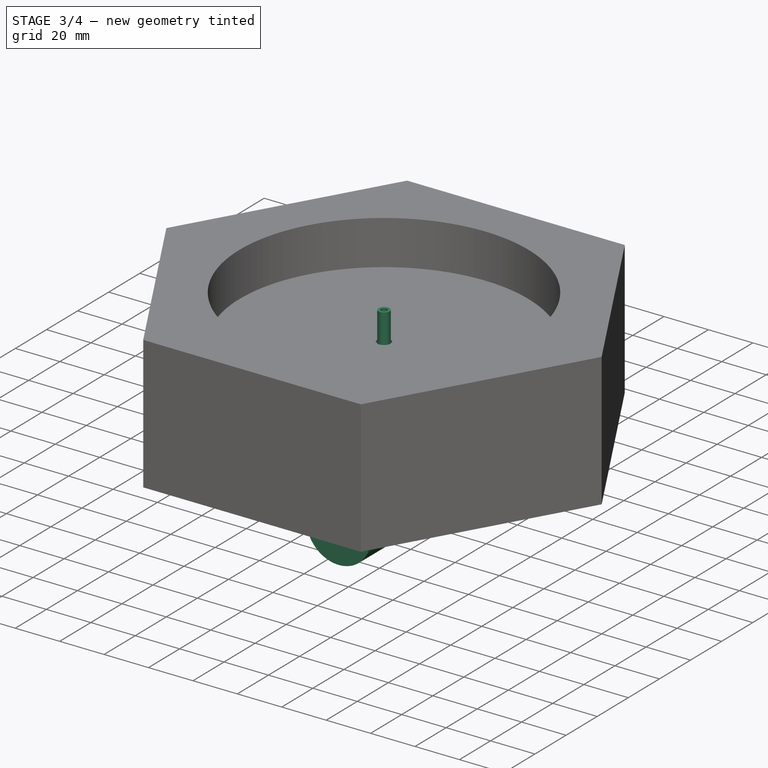
[diagram: stage 3 of 4 — iso view after this stage's code; geometry added in this stage tinted green]
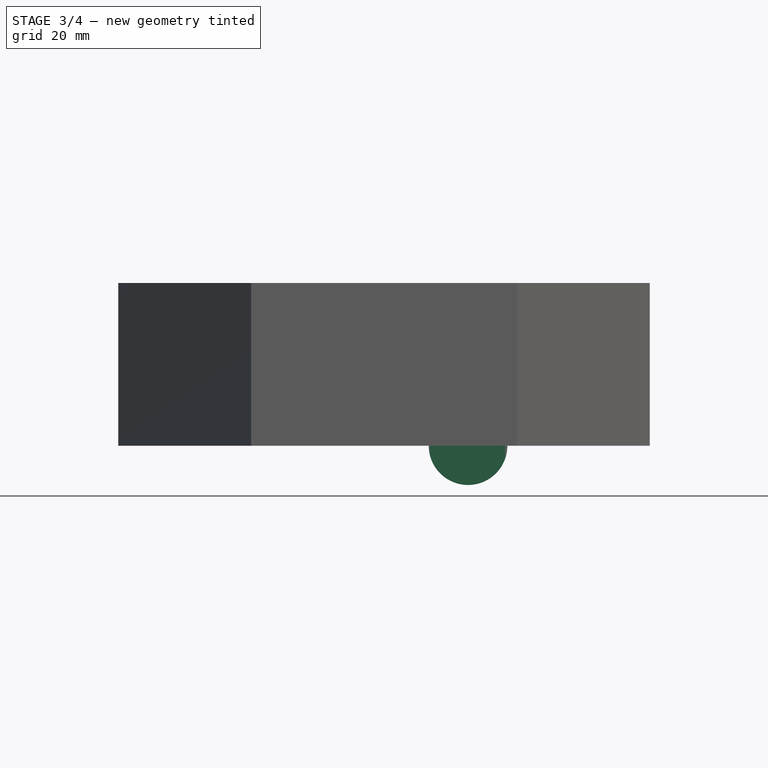
[diagram: stage 3 of 4 — front view after this stage's code; geometry added in this stage tinted green]
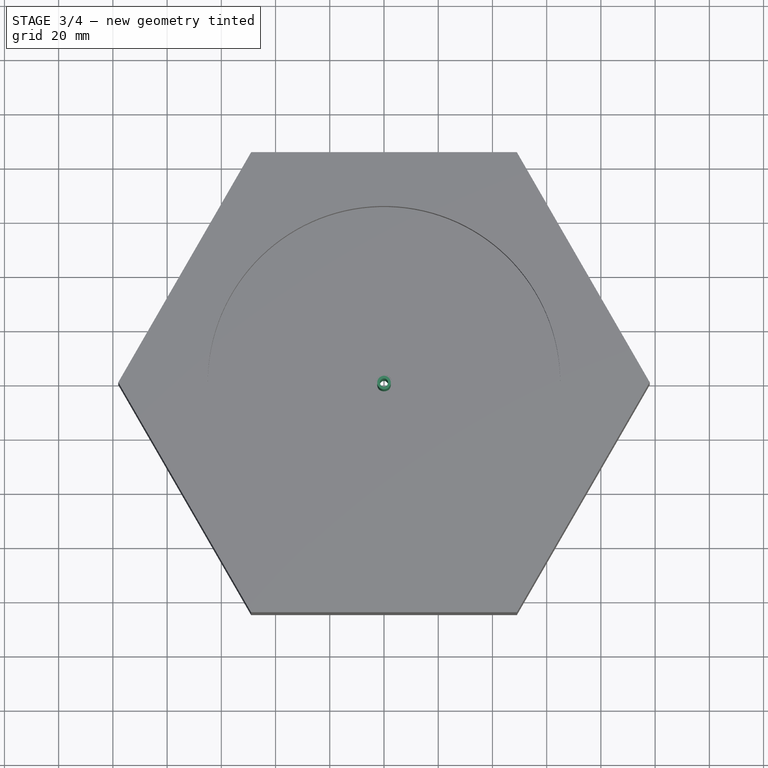
[diagram: stage 3 of 4 — top view after this stage's code; geometry added in this stage tinted green]
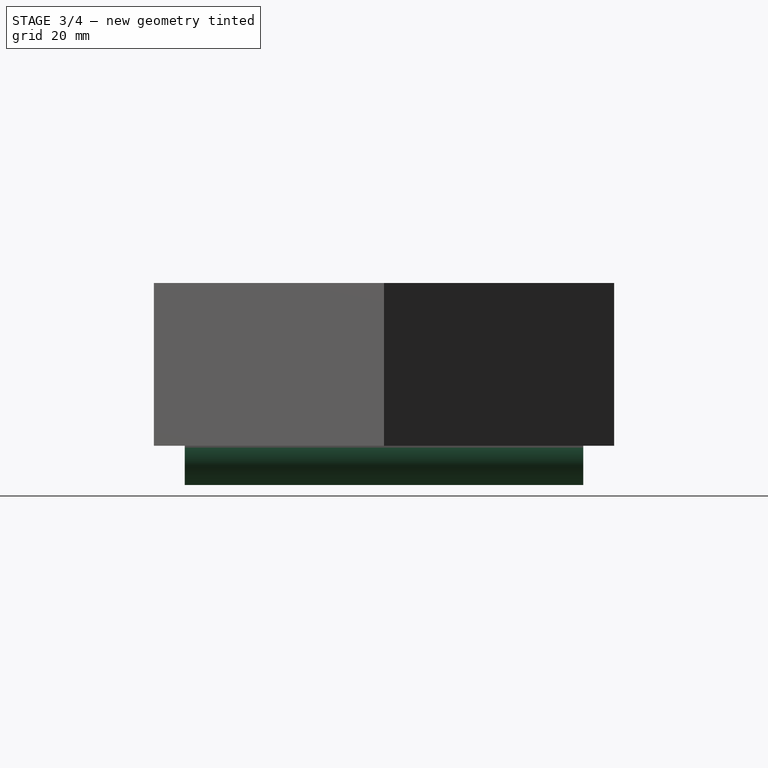
[diagram: stage 3 of 4 — right view after this stage's code; geometry added in this stage tinted green]
FEATURE [PartDesign::Pad] Pad004
  BaseFeature = -> Pad003
  Length = 15
  Length2 = 100
  Placement = pos=(0,0,0) rot=(1,0,0;1.5708rad)
  Profile = -> Pad003 [Face2]
  Type = 0
FEATURE [PartDesign::Body] Body004  label="accupack_2s1p_Body"
  Group = -> [Sketch010,Pad003,Pad004]
  Origin = -> Origin005
  Placement = pos=(-31,0,0) rot=(0,0,1;0rad)
  Tip = -> Pad004
FEATURE [Sketcher::SketchObject] Sketch011
  MapMode = 5
  Support = -> [XY_Plane009]
  sketch-geometry (6):
    g0: Circle CenterX=0 CenterY=0 CenterZ=0 NormalX=0 NormalY=0 NormalZ=1 AngleXU=0 Radius=2.5
    g1: LineSegment [constr] StartX=-15 StartY=30 StartZ=0 EndX=15 EndY=30 EndZ=0
    g2: LineSegment [constr] StartX=15 StartY=30 StartZ=0 EndX=15 EndY=-30 EndZ=0
    g3: LineSegment [constr] StartX=15 StartY=-30 StartZ=0 EndX=-15 EndY=-30 EndZ=0
    g4: LineSegment [constr] StartX=-15 StartY=-30 StartZ=0 EndX=-15 EndY=30 EndZ=0
    g5: Circle CenterX=0 CenterY=0 CenterZ=0 NormalX=0 NormalY=0 NormalZ=1 AngleXU=0 Radius=1.5
  constraints (15):
    c: Coincident(g0,g-1)
    c: Radius(g0) = 2.5
    c: Coincident(g1,g2)
    c: Coincident(g2,g3)
    c: Coincident(g3,g4)
    c: Coincident(g4,g1)
    c: Horizontal(g1)
    c: Horizontal(g3)
    c: Vertical(g2)
    c: Vertical(g4)
    c: Symmetric(g1,g3,g-1)
    c: DistanceX(g1,g1) = 30
    c: DistanceY(g2,g2) = 60
    c: Coincident(g5,g-1)
    c: Radius(g5) = 1.5
FEATURE [PartDesign::Pad] Pad005
  Length = 53
  Length2 = 15
  Profile = -> Sketch011
  Type = 0
FEATURE [Sketcher::SketchObject] Sketch012
  MapMode = 5
  Placement = pos=(0,0,0) rot=(1,0,0;1.5708rad)
  Support = -> [XZ_Plane006]
  sketch-geometry (5):
    g0: LineSegment StartX=-90 StartY=-15 StartZ=0 EndX=90 EndY=-15 EndZ=0
    g1: LineSegment StartX=90 StartY=-15 StartZ=0 EndX=90 EndY=45 EndZ=0
    g2: LineSegment StartX=90 StartY=45 StartZ=0 EndX=-90 EndY=45 EndZ=0
    g3: LineSegment StartX=-90 StartY=45 StartZ=0 EndX=-90 EndY=-15 EndZ=0
    g4: LineSegment [constr] StartX=0 StartY=0 StartZ=0 EndX=0 EndY=-15 EndZ=0
  constraints (14):
    c: Coincident(g0,g1)
    c: Coincident(g1,g2)
    c: Coincident(g2,g3)
    c: Coincident(g3,g0)
    c: Horizontal(g0)
    c: Horizontal(g2)
    c: Vertical(g1)
    c: Vertical(g3)
    c: DistanceY(g1,g1) = 60
    c: DistanceX(g2,g2) = 180
    c: Vertical(g4)
    c: DistanceY(g4,g4) = 15
    c: Symmetric(g0,g0,g4)
    c: Coincident(g4,g-1)
FEATURE [PartDesign::Body] Body005  label="axis_Body"
  Group = -> [Sketch011,Pad005,Sketch012]
  Origin = -> Origin006
  Tip = -> Pad005
FEATURE [Part::Part2DObjectPython] Rectangle003  label="batterypack_2s1p_26650_inline"  # Draft 2D object (typed FeaturePython)
  ChamferSize = 0
  Columns = 1
  FilletRadius = 0
  Height = 65
  Length = 56
  MakeFace = false
  Placement = pos=(-40,-61,0) rot=(0,0,1;0.523599rad)
  Rows = 1
FEATURE [App::DocumentObjectGroup] Group003  label="Akku"
  Group = -> [Rectangle,Rectangle001,Rectangle002,Rectangle003]
FEATURE [TechDraw::DrawSVGTemplate] Template004
  Height = 297
  Orientation = 1
  Width = 420
FEATURE [TechDraw::DrawViewPart] View004
  CoarseView = false
  Direction = (0,0,1)
  Focus = 100
  HardHidden = false
  IsoCount = 0
  IsoHidden = false
  IsoVisible = false
  LockPosition = false
  Perspective = false
  Rotation = 0
  ScaleType = 0
  SeamHidden = false
  SeamVisible = false
  SmoothHidden = false
  SmoothVisible = false
  Source = -> [Group004]
  X = 150
  Y = 148.2
FEATURE [TechDraw::DrawPage] Page004  label="hexagon_180mm_A3_CAM_Page"
  KeepUpdated = true
  ProjectionType = 0
  Template = -> Template004
  Views = -> [View004]
FEATURE [TechDraw::DrawSVGTemplate] Template005
  Height = 210
  Orientation = 1
  Width = 297
FEATURE [Sketcher::SketchObject] Sketch013  label="compass_needle_60mm_Sketch"
  MapMode = 5
  Support = -> [XY_Plane012]
  sketch-geometry (18):
    g0: LineSegment StartX=-6 StartY=11.3058 StartZ=0 EndX=-1.49325 EndY=58.6422 EndZ=0
    g1: LineSegment StartX=1.49325 StartY=58.6422 StartZ=0 EndX=6 EndY=11.3058 EndZ=0
    g2: LineSegment [constr] StartX=6 StartY=11.3058 StartZ=0 EndX=6 EndY=-11.3058 EndZ=0
    g3: LineSegment StartX=6 StartY=-11.3058 StartZ=0 EndX=1.49325 EndY=-58.6422 EndZ=0
    g4: LineSegment StartX=-1.49325 StartY=-58.6422 StartZ=0 EndX=-6 EndY=-11.3058 EndZ=0
    g5: LineSegment [constr] StartX=-6 StartY=-11.3058 StartZ=0 EndX=-6 EndY=11.3058 EndZ=0
    g6: LineSegment [constr] StartX=-6 StartY=11.3058 StartZ=0 EndX=6 EndY=11.3058 EndZ=0
    g7: LineSegment [constr] StartX=-6 StartY=-11.3058 StartZ=0 EndX=6 EndY=-11.3058 EndZ=0
    g8: ArcOfCircle CenterX=0 CenterY=58.5 CenterZ=0 NormalX=0 NormalY=0 NormalZ=1 AngleXU=0 Radius=1.5 StartAngle=0.0949209 EndAngle=3.04667
    g9: ArcOfCircle CenterX=0 CenterY=0 CenterZ=0 NormalX=0 NormalY=0 NormalZ=1 AngleXU=0 Radius=12 StartAngle=2.17826 EndAngle=4.10493
    g10: ArcOfCircle CenterX=0 CenterY=0 CenterZ=0 NormalX=0 NormalY=0 NormalZ=1 AngleXU=0 Radius=12 StartAngle=5.30738 EndAngle=7.24652
    g11: ArcOfCircle CenterX=0 CenterY=-58.5 CenterZ=0 NormalX=0 NormalY=0 NormalZ=1 AngleXU=0 Radius=1.5 StartAngle=3.23651 EndAngle=6.18826
    g12: LineSegment [constr] StartX=0 StartY=60 StartZ=0 EndX=0 EndY=-60 EndZ=0
    g13: ArcOfCircle CenterX=7.991 CenterY=11.4954 CenterZ=0 NormalX=0 NormalY=0 NormalZ=1 AngleXU=0 Radius=2 StartAngle=3.23651 EndAngle=4.10493
    g14: ArcOfCircle CenterX=-7.991 CenterY=11.4954 CenterZ=0 NormalX=0 NormalY=0 NormalZ=1 AngleXU=0 Radius=2 StartAngle=5.31985 EndAngle=6.18826
    g15: ArcOfCircle CenterX=-7.991 CenterY=-11.4954 CenterZ=0 NormalX=0 NormalY=0 NormalZ=1 AngleXU=0 Radius=2 StartAngle=0.0949209 EndAngle=0.963334
    g16: ArcOfCircle CenterX=7.65182 CenterY=-11.3058 CenterZ=0 NormalX=0 NormalY=0 NormalZ=1 AngleXU=0 Radius=1.65182 StartAngle=2.16578 EndAngle=3.14159
    g17: Circle CenterX=0 CenterY=0 CenterZ=0 NormalX=0 NormalY=0 NormalZ=1 AngleXU=0 Radius=2.5
  constraints (40):
    c: Coincident(g1,g2)
    c: Vertical(g2)
    c: Coincident(g2,g3)
    c: Coincident(g4,g5)
    c: Coincident(g5,g0)
    c: Vertical(g5)
    c: Coincident(g6,g0)
    c: Coincident(g6,g1)
    c: Horizontal(g6)
    c: Coincident(g7,g4)
    c: Coincident(g7,g2)
    c: Horizontal(g7)
    c: Symmetric(g1,g4,g-1)
    c: Coincident(g9,g-1)
    c: Coincident(g10,g-1)
    c: Equal(g9,g10)
    c: Tangent(g8,g0) = 1.5708
    c: Radius(g8) = 1.5
    c: Tangent(g1,g8) = 1.5708
    c: Tangent(g11,g4) = 1.5708
    c: Equal(g11,g8)
    c: Tangent(g3,g11) = 1.5708
    c: Vertical(g12)
    c: Perpendicular(g12,g11) = 1.5708
    c: Perpendicular(g12,g8) = 4.71239
    c: Symmetric(g12,g12,g-1)
    c: DistanceY(g12,g12) = 120
    c: DistanceX(g6,g6) = 12
    c: Radius(g10) = 12
    c: Tangent(g16,g10) = 1.5708
    c: Tangent(g16,g2) = -1.5708
    c: Tangent(g4,g15) = -1.5708
    c: Tangent(g9,g15) = 1.5708
    c: Tangent(g9,g14) = 1.5708
    c: Tangent(g14,g0) = -1.5708
    c: Tangent(g1,g13) = -1.5708
    c: Tangent(g13,g10) = 1.5708
    c: Radius(g13) = 2
    c: Coincident(g17,g-1)
    c: Radius(g17) = 2.5
FEATURE [TechDraw::DrawViewPart] View005  label="compass_needle_60mm_View"
  CoarseView = false
  Direction = (0,0,1)
  Focus = 100
  HardHidden = false
  IsoCount = 0
  IsoHidden = false
  IsoVisible = false
  LockPosition = false
  Perspective = false
  Rotation = 0
  ScaleType = 0
  SeamHidden = false
  SeamVisible = false
  SmoothHidden = false
  SmoothVisible = false
  Source = -> [Sketch013]
  X = 148.5
  Y = 105
FEATURE [TechDraw::DrawPage] Page005  label="compass_needle_60mm_A4_CAM_Page"
  KeepUpdated = true
  ProjectionType = 0
  Template = -> Template005
  Views = -> [View005]
FEATURE [App::Part] Part002  label="hexagon_180mm_paper_Part"
  Group = -> [Array003,Sketch009,Circle003,Group004,Template004,View004,Page004]
  License = CC BY 3.0
  LicenseURL = http://creativecommons.org/licenses/by/3.0/
  Origin = -> Origin010
FEATURE [App::Part] Part003  label="axis_helper_Part"
  Group = -> [Body005]
  License = CC BY 3.0
  LicenseURL = http://creativecommons.org/licenses/by/3.0/
  Origin = -> Origin011
FEATURE [PartDesign::FeatureBase] Clone  label="accupack_2s1p_Body_Clone"
  BaseFeature = -> Body004
  Placement = pos=(31,0,0) rot=(0,0,1;0rad)
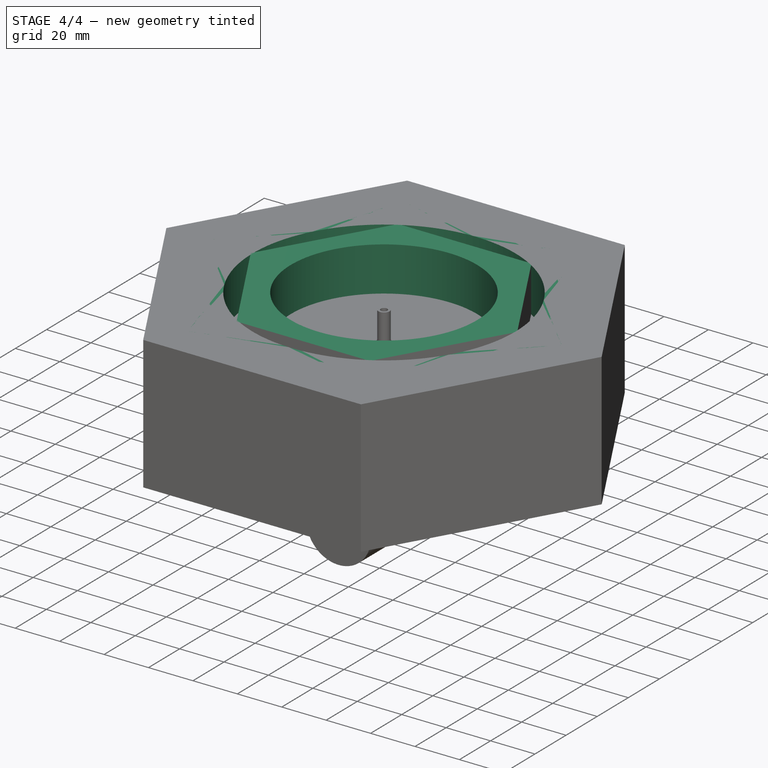
[diagram: stage 4 of 4 — iso view after this stage's code; geometry added in this stage tinted green]
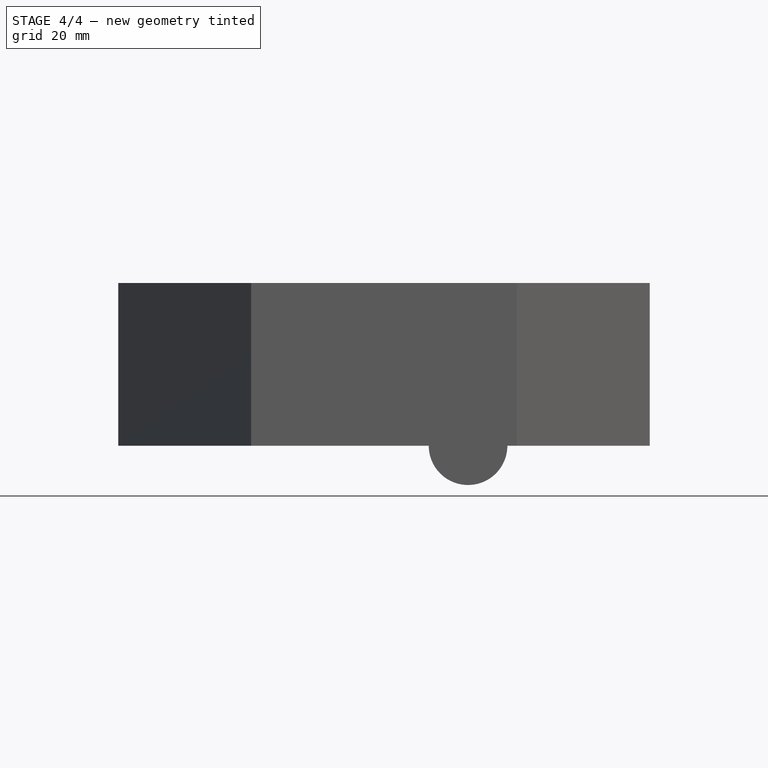
[diagram: stage 4 of 4 — front view after this stage's code; geometry added in this stage tinted green]
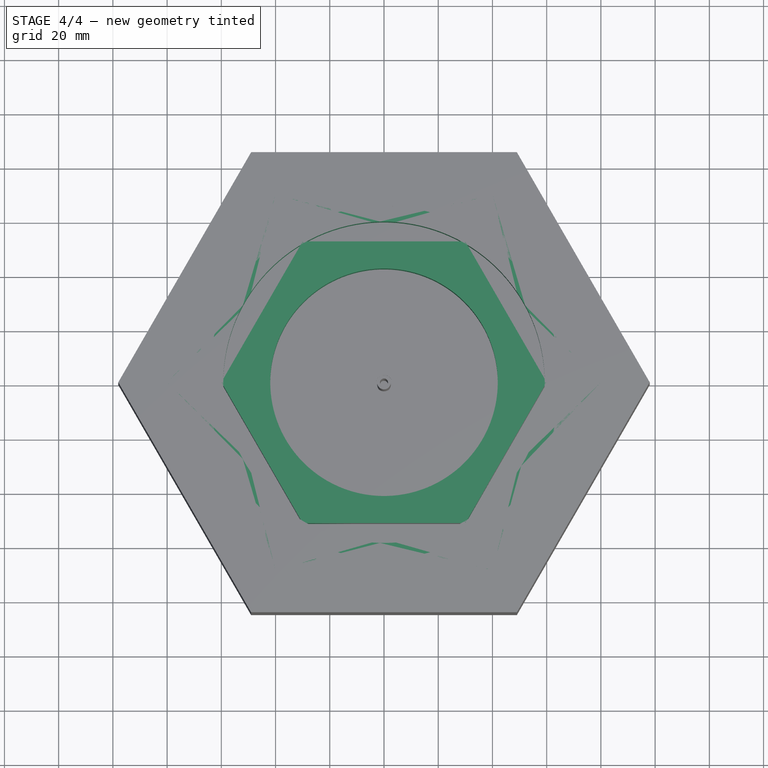
[diagram: stage 4 of 4 — top view after this stage's code; geometry added in this stage tinted green]
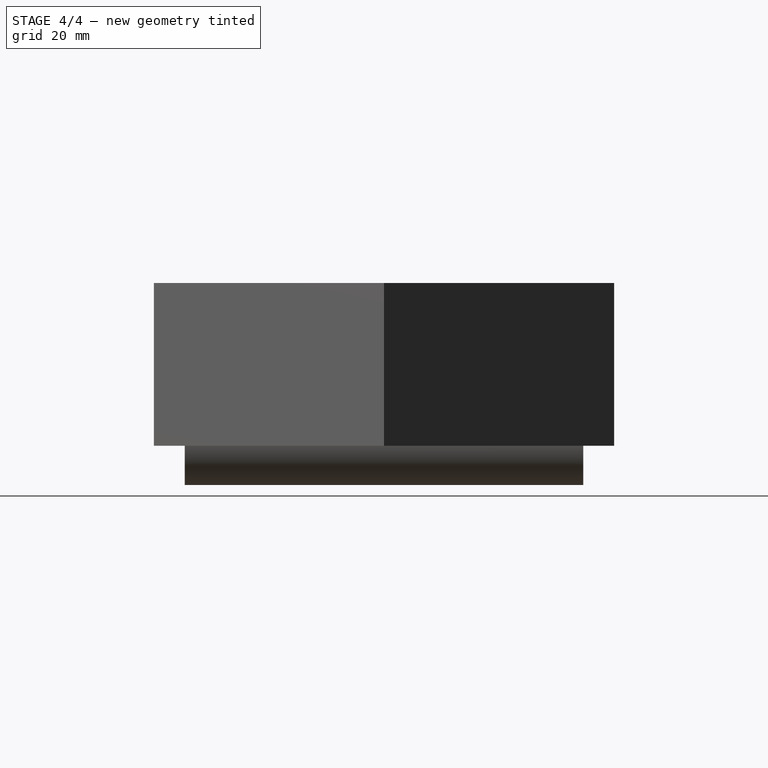
[diagram: stage 4 of 4 — right view after this stage's code; geometry added in this stage tinted green]
FEATURE [Sketcher::SketchObject] Sketch  label="base_outline_hexagon_120mm_Sketch"
  MapMode = 5
  Support = -> [XY_Plane001]
  sketch-geometry (7):
    g0: LineSegment StartX=30 StartY=51.9615 StartZ=0 EndX=-30 EndY=51.9615 EndZ=0
    g1: LineSegment StartX=-30 StartY=51.9615 StartZ=0 EndX=-60 EndY=0 EndZ=0
    g2: LineSegment StartX=-60 StartY=0 StartZ=0 EndX=-30 EndY=-51.9615 EndZ=0
    g3: LineSegment StartX=-30 StartY=-51.9615 StartZ=0 EndX=30 EndY=-51.9615 EndZ=0
    g4: LineSegment StartX=30 StartY=-51.9615 StartZ=0 EndX=60 EndY=0 EndZ=0
    g5: LineSegment StartX=60 StartY=0 StartZ=0 EndX=30 EndY=51.9615 EndZ=0
    g6: Circle [constr] CenterX=0 CenterY=0 CenterZ=0 NormalX=0 NormalY=0 NormalZ=1 AngleXU=0 Radius=60
  constraints (20):
    c: Coincident(g0,g1)
    c: Coincident(g1,g2)
    c: Coincident(g2,g3)
    c: Coincident(g3,g4)
    c: Coincident(g4,g5)
    c: Coincident(g5,g0)
    c: Equal(g0, g1-g5) x5
    c: PointOnObject(g0,g6)
    c: PointOnObject(g1,g6)
    c: PointOnObject(g2,g6)
    c: PointOnObject(g3,g6)
    c: PointOnObject(g4,g6)
    c: PointOnObject(g5,g6)
    c: Coincident(g6,g-1)
    c: Horizontal(g0)
    c: DistanceX(g1,g4) = 120
    c: DistanceX(g3,g3) = 60
    c: DistanceY(g3,g0) = 103.923
    c: DistanceX(g3,g4) = 30
    c: Radius(g6) = 60
FEATURE [PartDesign::Pad] Pad
  Length = 60
  Length2 = 100
  Profile = -> Sketch
  Type = 0
FEATURE [Sketcher::SketchObject] Sketch001
  ExternalGeometry = -> [Pad]
  MapMode = 5
  Placement = pos=(0,0,60) rot=(0,0,1;0rad)
  Support = -> [Pad]
  sketch-geometry (2):
    g0: Circle CenterX=0 CenterY=0 CenterZ=0 NormalX=0 NormalY=0 NormalZ=1 AngleXU=0 Radius=41.9615
    g1: LineSegment [constr] StartX=0 StartY=51.9615 StartZ=0 EndX=0 EndY=41.9615 EndZ=0
  constraints (5):
    c: Coincident(g0,g-1)
    c: Vertical(g1)
    c: Symmetric(g-3,g-3,g1)
    c: PointOnObject(g1,g0)
    c: DistanceY(g1,g1) = 10
FEATURE [PartDesign::Pocket] Pocket
  BaseFeature = -> Pad
  Length = 5
  Length2 = 100
  Offset = -4
  Profile = -> Sketch001
  Type = 2
FEATURE [Sketcher::SketchObject] Sketch004  label="base_outline_hexagon_160mm_Sketch"
  MapMode = 5
  Support = -> [XY_Plane003]
  sketch-geometry (7):
    g0: LineSegment StartX=40 StartY=69.282 StartZ=0 EndX=-40 EndY=69.282 EndZ=0
    g1: LineSegment StartX=-40 StartY=69.282 StartZ=0 EndX=-80 EndY=0 EndZ=0
    g2: LineSegment StartX=-80 StartY=0 StartZ=0 EndX=-40 EndY=-69.282 EndZ=0
    g3: LineSegment StartX=-40 StartY=-69.282 StartZ=0 EndX=40 EndY=-69.282 EndZ=0
    g4: LineSegment StartX=40 StartY=-69.282 StartZ=0 EndX=80 EndY=0 EndZ=0
    g5: LineSegment StartX=80 StartY=0 StartZ=0 EndX=40 EndY=69.282 EndZ=0
    g6: Circle [constr] CenterX=0 CenterY=0 CenterZ=0 NormalX=0 NormalY=0 NormalZ=1 AngleXU=0 Radius=80
  constraints (20):
    c: Coincident(g0,g1)
    c: Coincident(g1,g2)
    c: Coincident(g2,g3)
    c: Coincident(g3,g4)
    c: Coincident(g4,g5)
    c: Coincident(g5,g0)
    c: Equal(g0, g1-g5) x5
    c: PointOnObject(g0,g6)
    c: PointOnObject(g1,g6)
    c: PointOnObject(g2,g6)
    c: PointOnObject(g3,g6)
    c: PointOnObject(g4,g6)
    c: PointOnObject(g5,g6)
    c: Coincident(g6,g-1)
    c: Horizontal(g0)
    c: DistanceX(g1,g4) = 160
    c: DistanceX(g3,g3) = 80
    c: DistanceY(g3,g0) = 138.564
    c: DistanceX(g3,g4) = 40
    c: Radius(g6) = 80
FEATURE [PartDesign::Pad] Pad002
  Length = 60
  Length2 = 100
  Profile = -> Sketch004
  Type = 0
FEATURE [Sketcher::SketchObject] Sketch005
  ExternalGeometry = -> [Pad002]
  MapMode = 5
  Placement = pos=(0,0,60) rot=(0,0,1;0rad)
  Support = -> [Pad002]
  sketch-geometry (2):
    g0: Circle CenterX=0 CenterY=0 CenterZ=0 NormalX=0 NormalY=0 NormalZ=1 AngleXU=0 Radius=59.282
    g1: LineSegment [constr] StartX=0 StartY=69.282 StartZ=0 EndX=0 EndY=59.282 EndZ=0
  constraints (5):
    c: Coincident(g0,g-1)
    c: Vertical(g1)
    c: Symmetric(g-3,g-3,g1)
    c: PointOnObject(g1,g0)
    c: DistanceY(g1,g1) = 10
FEATURE [PartDesign::Pocket] Pocket002
  BaseFeature = -> Pad002
  Length = 5
  Length2 = 100
  Offset = -4
  Profile = -> Sketch005
  Type = 2
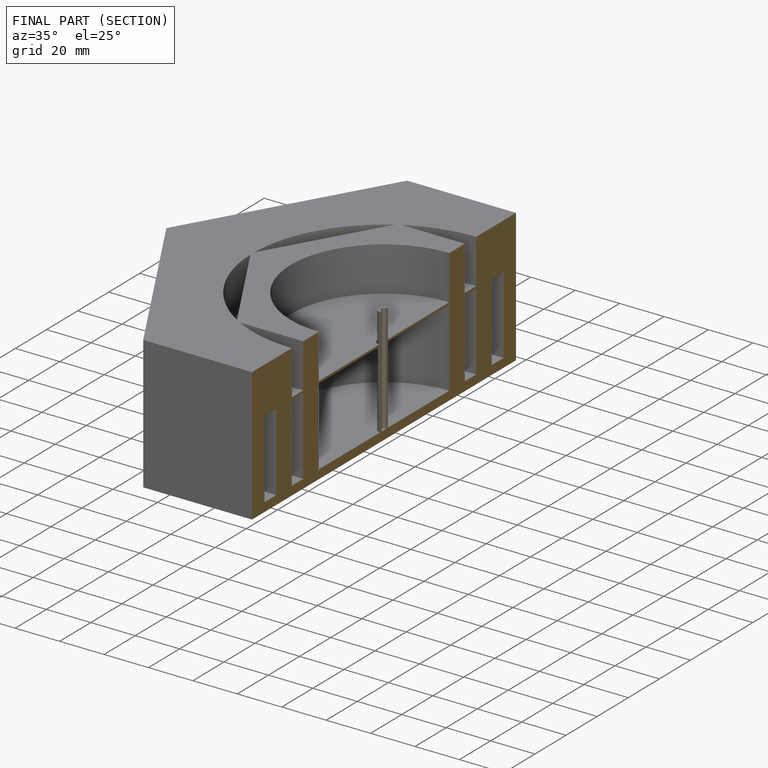
[diagram: finished part — half-section view (interior)]
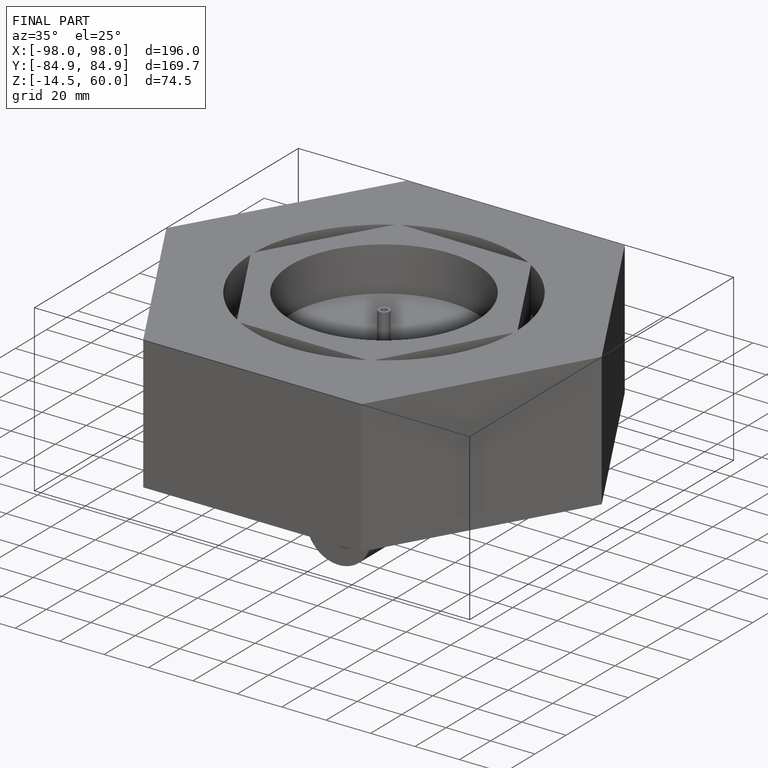
[diagram: finished part — iso view with bounding-box wireframe]
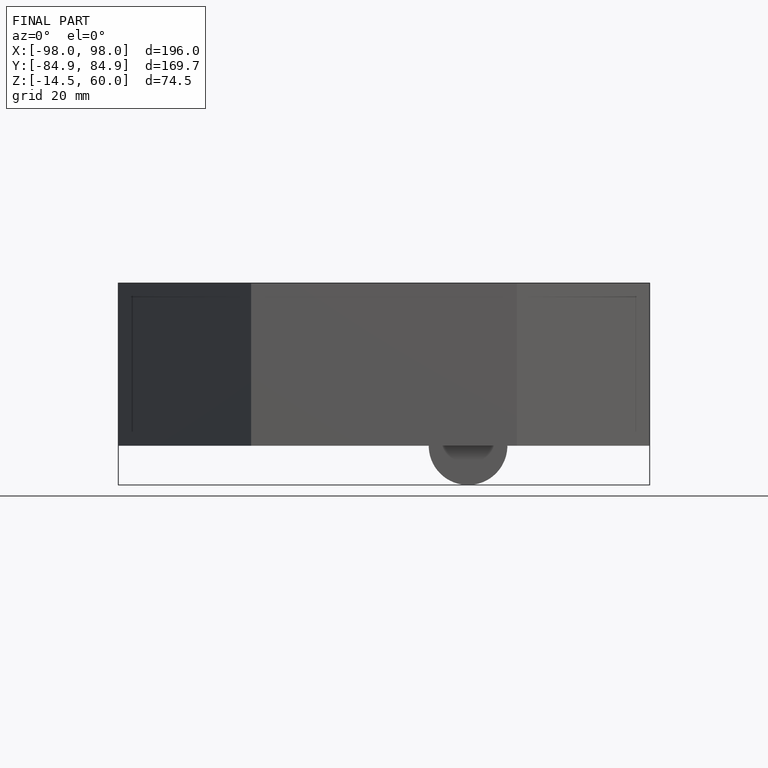
[diagram: finished part — front view with bounding-box wireframe]
